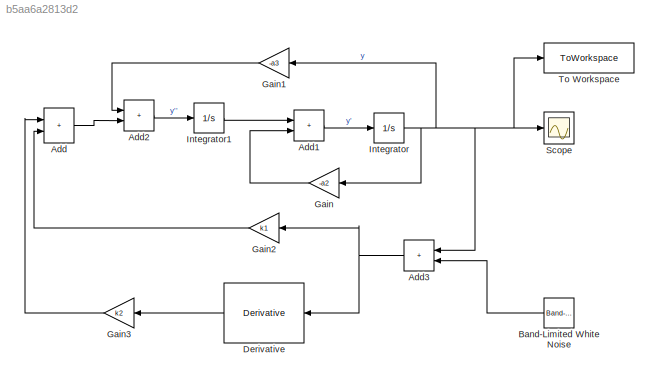
MODEL slx_b5aa6a2813d2
KIND model
CONFIG AbsTol = auto
CONFIG EnableMultiTasking = off
CONFIG FixedStep = 0.0001
CONFIG MaxStep = auto
CONFIG MinStep = auto
CONFIG RelTol = 1e-3
CONFIG SampleTimeConstraint = Unconstrained
CONFIG SolverName = FixedStepAuto
CONFIG StartTime = 0.0
CONFIG StopTime = 100
BLOCK [Sum] Add
  IconShape = rectangular
  Ports = [2, 1]
BLOCK [Sum] Add1
  IconShape = rectangular
  Ports = [2, 1]
BLOCK [Sum] Add2
  IconShape = rectangular
  Ports = [2, 1]
BLOCK [Sum] Add3
  IconShape = rectangular
  NameLocation = top
  Ports = [2, 1]
BLOCK [Reference] Band-Limited White Noise  REF=simulink/Sources/Band-Limited
White Noise
  NameLocation = top
  Ports = [0, 1]
  SourceBlock = simulink/Sources/Band-Limited\nWhite Noise
  SourceProductBaseCode = SL
  SourceType = Band-Limited White Noise.
BLOCK [Derivative] Derivative
  NameLocation = top
BLOCK [Gain] Gain
  Gain = -a2
  NameLocation = top
BLOCK [Gain] Gain1
  Gain = -a3
BLOCK [Gain] Gain2
  Gain = k1
BLOCK [Gain] Gain3
  Gain = k2
BLOCK [Integrator] Integrator
  InitialCondition = s1
  Ports = [1, 1]
BLOCK [Integrator] Integrator1
  InitialCondition = s2
  Ports = [1, 1]
BLOCK [Scope] Scope
  Floating = off
  NumInputPorts = 1
  Ports = [1]
  ScopeSpecificationString = Simulink.scopes.TimeScopeBlockCfg('CurrentConfiguration', extmgr.ConfigurationSet(extmgr.Configuration('Core','General UI',true),extmgr.Configuration('Core','Source UI',true),extmgr.Configuration('Sources','WiredSimulink',true),extmgr.Configuration('Visuals','Time Domain',true,'SerializedDisplays',{struct('MinYLimReal','-13.91688','MaxYLimReal','23.76854','YLabelReal','','MinYLimMag','0.00000','Ma...<+1356ch>
BLOCK [ToWorkspace] To Workspace
  FixptAsFi = on
  MaxDataPoints = inf
  Ports = [1]
  SampleTime = -1
  SaveFormat = Timeseries
  VariableName = y
LINE Add1:1 -> Integrator:1
LINE Add2:1 -> Integrator1:1
NET Add3:1 -> Derivative:1, Gain2:1
LINE Add:1 -> Add2:2
LINE Band-Limited White Noise:1 -> Add3:2
LINE Derivative:1 -> Gain3:1
LINE Gain1:1 -> Add2:1
LINE Gain2:1 -> Add:2
LINE Gain3:1 -> Add:1
LINE Gain:1 -> Add1:2
LINE Integrator1:1 -> Add1:1
NET Integrator:1 -> Add3:1, Gain1:1, Gain:1, Scope:1, To Workspace:1
note: NET lines group one-source signal fan-out (src -> all destinations, sorted); 1:1 wires keep LINE
